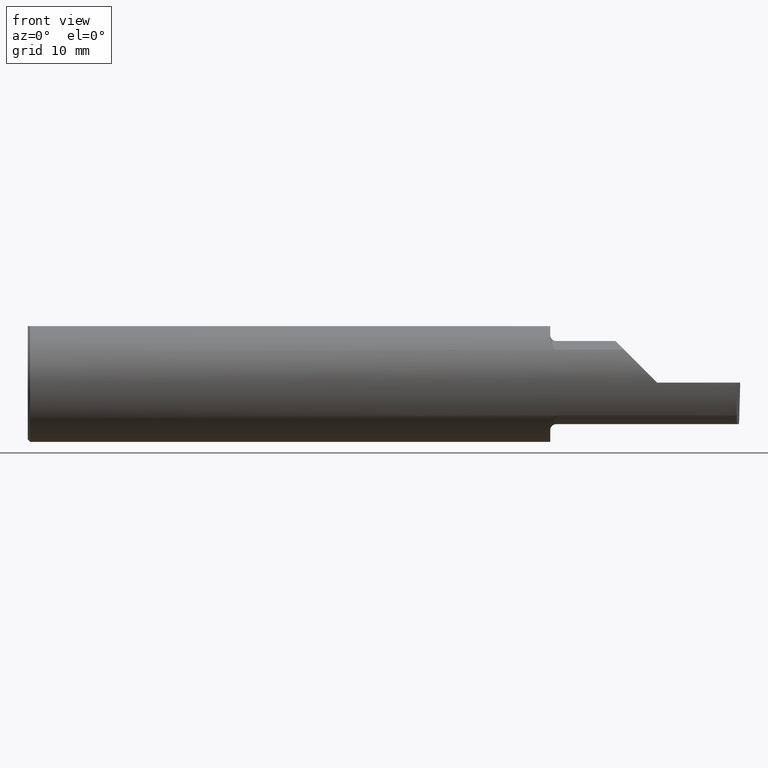
[diagram: clean part render]
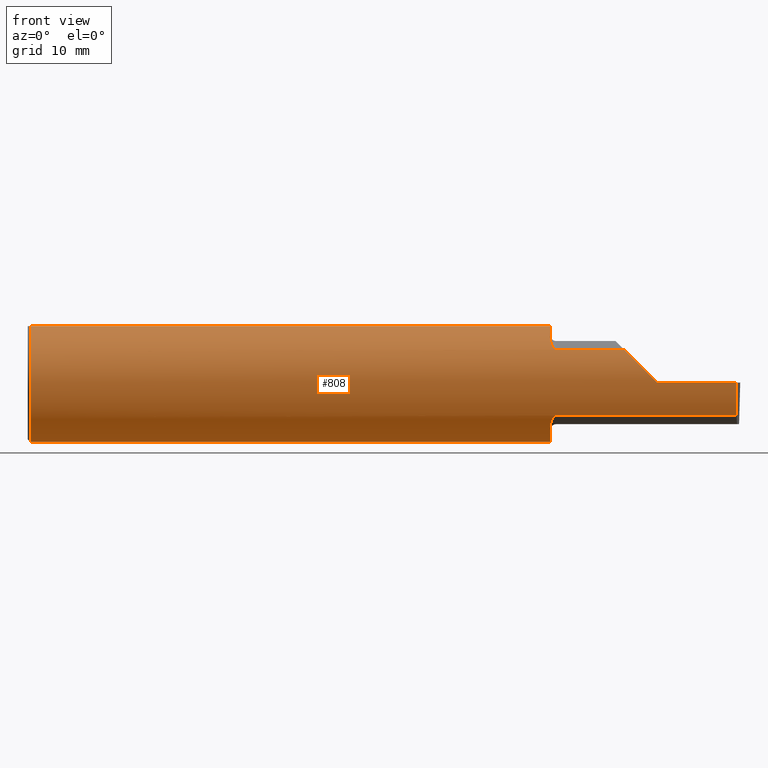
[diagram: same view with one face highlighted and labeled with its STEP entity id]
A machine part, front view. The second image highlights one B-rep face of the part: STEP entity #808.
In plain terms, the highlighted cylindrical surface (partial cylindrical patch) has radius 6.3462 mm, axis along (-1, -0, -0).
Its self-contained STEP definition (entity closure, byte-faithful):
#7 = AXIS2_PLACEMENT_3D ( 'NONE', #334, #591, #534 ) ;
#9 = CARTESIAN_POINT ( 'NONE',  ( 0.009999999999999856226, 0.000000000000000000, 0.000000000000000000 ) ) ;
#11 = CARTESIAN_POINT ( 'NONE',  ( 2.511704467739031887, -0.2080850024789288877, 0.1382955322609669413 ) ) ;
#22 = CARTESIAN_POINT ( 'NONE',  ( 2.214302603425052141, -0.2041009206016212441, -0.1441313430770040926 ) ) ;
#36 = VERTEX_POINT ( 'NONE', #821 ) ;
#44 = VECTOR ( 'NONE', #358, 39.37007874015748143 ) ;
#46 = CARTESIAN_POINT ( 'NONE',  ( 2.200000000000000178, 0.000000000000000000, 0.000000000000000000 ) ) ;
#48 = ORIENTED_EDGE ( 'NONE', *, *, #701, .F. ) ;
#51 = CARTESIAN_POINT ( 'NONE',  ( 2.202968662030529323, -0.1849684355203378150, 0.1680843977756268370 ) ) ;
#75 = CARTESIAN_POINT ( 'NONE',  ( 2.600434159100402987, -0.2498499999999999610, 0.04956584089959713973 ) ) ;
#84 = LINE ( 'NONE', #329, #500 ) ;
#85 = EDGE_CURVE ( 'NONE', #425, #422, #564, .T. ) ;
#91 = CARTESIAN_POINT ( 'NONE',  ( 0.009999999999999856226, 0.07650098038587520299, 0.2378499999999998671 ) ) ;
#95 = CARTESIAN_POINT ( 'NONE',  ( 2.221700027347579098, -0.2077785947292768165, -0.1387580622202825853 ) ) ;
#97 = ORIENTED_EDGE ( 'NONE', *, *, #143, .F. ) ;
#100 = DIRECTION ( 'NONE',  ( 1.000000000000000000, 0.000000000000000000, 0.000000000000000000 ) ) ;
#101 = VERTEX_POINT ( 'NONE', #301 ) ;
#109 = CARTESIAN_POINT ( 'NONE',  ( 2.212616400345756240, -0.2024684335577102146, 0.1464246884265639481 ) ) ;
#113 = CARTESIAN_POINT ( 'NONE',  ( 2.208182335268384033, -0.1972192205116130859, 0.1535061413537210928 ) ) ;
#114 = ORIENTED_EDGE ( 'NONE', *, *, #417, .F. ) ;
#123 = VECTOR ( 'NONE', #321, 39.37007874015748143 ) ;
#142 = CARTESIAN_POINT ( 'NONE',  ( 2.200000000000000178, -0.1616050818046604054, -0.1905487340154980447 ) ) ;
#143 = EDGE_CURVE ( 'NONE', #36, #592, #342, .T. ) ;
#157 = EDGE_CURVE ( 'NONE', #332, #36, #336, .T. ) ;
#160 = VECTOR ( 'NONE', #331, 39.37007874015748143 ) ;
#165 = LINE ( 'NONE', #432, #44 ) ;
#168 = EDGE_CURVE ( 'NONE', #323, #422, #434, .T. ) ;
#185 = LINE ( 'NONE', #569, #160 ) ;
#186 = EDGE_CURVE ( 'NONE', #380, #229, #238, .T. ) ;
#205 = CYLINDRICAL_SURFACE ( 'NONE', #7, 0.2498499999999999888 ) ;
#218 = CARTESIAN_POINT ( 'NONE',  ( 2.200000000000000178, -0.1716188362992555339, -0.1820560320165480472 ) ) ;
#219 = AXIS2_PLACEMENT_3D ( 'NONE', #9, #513, #251 ) ;
#220 = FACE_OUTER_BOUND ( 'NONE', #326, .T. ) ;
#229 = VERTEX_POINT ( 'NONE', #457 ) ;
#235 = DIRECTION ( 'NONE',  ( 0.000000000000000000, 0.000000000000000000, -1.000000000000000000 ) ) ;
#238 =( BOUNDED_CURVE ( )  B_SPLINE_CURVE ( 3, ( #317, #75, #709, #11 ),
 .UNSPECIFIED., .F., .F. ) 
 B_SPLINE_CURVE_WITH_KNOTS ( ( 4, 4 ),
 ( 4.712388980384689674, 5.298966915116348986 ),
 .UNSPECIFIED. ) 
 CURVE ( )  GEOMETRIC_REPRESENTATION_ITEM ( )  RATIONAL_B_SPLINE_CURVE ( ( 1.000000000000000000, 0.9715321379117536349, 0.9715321379117536349, 1.000000000000000000 ) ) 
 REPRESENTATION_ITEM ( '' )  );
#251 = DIRECTION ( 'NONE',  ( 0.000000000000000000, 0.000000000000000000, -1.000000000000000000 ) ) ;
#260 = DIRECTION ( 'NONE',  ( 1.000000000000000000, 0.000000000000000000, 0.000000000000000000 ) ) ;
#265 = CARTESIAN_POINT ( 'NONE',  ( 2.212579853086618975, -0.2024300470081734638, -0.1464774911482685793 ) ) ;
#267 = VERTEX_POINT ( 'NONE', #384 ) ;
#270 = CARTESIAN_POINT ( 'NONE',  ( 2.217611663768900065, -0.2061921161193829566, -0.1411075319999377797 ) ) ;
#274 = ORIENTED_EDGE ( 'NONE', *, *, #767, .F. ) ;
#277 = CARTESIAN_POINT ( 'NONE',  ( 2.208176740666625726, -0.1972027065478072771, -0.1535263573771914747 ) ) ;
#278 = EDGE_CURVE ( 'NONE', #753, #267, #185, .T. ) ;
#279 = CARTESIAN_POINT ( 'NONE',  ( 2.200000000000000178, -0.07650098038587527238, 0.2378499999999998671 ) ) ;
#281 = EDGE_CURVE ( 'NONE', #101, #332, #502, .T. ) ;
#296 = CARTESIAN_POINT ( 'NONE',  ( 2.217647060162628581, -0.2062109266231181848, 0.1410799729252291412 ) ) ;
#301 = CARTESIAN_POINT ( 'NONE',  ( 0.009999999999999856226, -0.07650098038587520299, 0.2378499999999998671 ) ) ;
#304 = DIRECTION ( 'NONE',  ( 0.000000000000000000, 0.000000000000000000, -1.000000000000000000 ) ) ;
#306 = CARTESIAN_POINT ( 'NONE',  ( 2.206159563508734767, -0.1933019864360848439, 0.1584298865564832959 ) ) ;
#317 = CARTESIAN_POINT ( 'NONE',  ( 2.650000000000000355, -0.2498499999999999610, 4.286263797015729199E-17 ) ) ;
#318 = ORIENTED_EDGE ( 'NONE', *, *, #278, .F. ) ;
#321 = DIRECTION ( 'NONE',  ( 1.000000000000000000, 0.000000000000000000, 0.000000000000000000 ) ) ;
#323 = VERTEX_POINT ( 'NONE', #719 ) ;
#326 = EDGE_LOOP ( 'NONE', ( #318, #669, #714, #710, #274, #97, #403, #433, #803, #399, #514, #48, #114 ) ) ;
#329 = CARTESIAN_POINT ( 'NONE',  ( 2.533868310000000346, -0.2080850024789289987, 0.1382955322609668025 ) ) ;
#331 = DIRECTION ( 'NONE',  ( -1.000000000000000000, -0.000000000000000000, -0.000000000000000000 ) ) ;
#332 = VERTEX_POINT ( 'NONE', #279 ) ;
#334 = CARTESIAN_POINT ( 'NONE',  ( 0.000000000000000000, 0.000000000000000000, 0.000000000000000000 ) ) ;
#336 = CIRCLE ( 'NONE', #404, 0.2498499999999999888 ) ;
#342 = B_SPLINE_CURVE_WITH_KNOTS ( 'NONE', 3,
 ( #816, #802, #683, #738, #51, #306, #113, #109, #548, #296, #563, #616, #673, #560 ),
 .UNSPECIFIED., .F., .F.,
 ( 4, 2, 2, 2, 2, 2, 4 ),
 ( 0.0003834465838148164922, 0.0008781406165086602222, 0.001372834649202503898, 0.001867528681896347791, 0.002114875698243273532, 0.002238549206416744208, 0.002362222714590215319 ),
 .UNSPECIFIED. ) ;
#344 = CARTESIAN_POINT ( 'NONE',  ( 2.218863362722770294, -0.2068301641248770362, -0.1401678546132360537 ) ) ;
#358 = DIRECTION ( 'NONE',  ( -1.000000000000000000, -0.000000000000000000, -0.000000000000000000 ) ) ;
#365 = DIRECTION ( 'NONE',  ( -1.000000000000000000, -0.000000000000000000, -0.000000000000000000 ) ) ;
#380 = VERTEX_POINT ( 'NONE', #471 ) ;
#384 = CARTESIAN_POINT ( 'NONE',  ( 2.225000000000000089, -0.2080850024789288599, -0.1382955322609668025 ) ) ;
#390 = CARTESIAN_POINT ( 'NONE',  ( 2.984481223124517690, -0.2080850024789289987, -0.1382955322609668025 ) ) ;
#399 = ORIENTED_EDGE ( 'NONE', *, *, #85, .T. ) ;
#403 = ORIENTED_EDGE ( 'NONE', *, *, #157, .F. ) ;
#404 = AXIS2_PLACEMENT_3D ( 'NONE', #46, #811, #806 ) ;
#415 = CIRCLE ( 'NONE', #219, 0.2498499999999999888 ) ;
#417 = EDGE_CURVE ( 'NONE', #267, #559, #727, .T. ) ;
#422 = VERTEX_POINT ( 'NONE', #91 ) ;
#425 = VERTEX_POINT ( 'NONE', #554 ) ;
#432 = CARTESIAN_POINT ( 'NONE',  ( 4.499279347985562423E-32, -0.2498499999999999610, 3.673940397442054938E-16 ) ) ;
#433 = ORIENTED_EDGE ( 'NONE', *, *, #281, .F. ) ;
#434 = LINE ( 'NONE', #492, #655 ) ;
#436 = CARTESIAN_POINT ( 'NONE',  ( 2.984481223124517690, -0.2080850024789289987, -0.1382955322609668025 ) ) ;
#438 = EDGE_CURVE ( 'NONE', #794, #380, #165, .T. ) ;
#457 = CARTESIAN_POINT ( 'NONE',  ( 2.511704467739031887, -0.2080850024789288877, 0.1382955322609669413 ) ) ;
#459 = DIRECTION ( 'NONE',  ( 1.000000000000000000, 0.000000000000000000, 0.000000000000000000 ) ) ;
#466 = CARTESIAN_POINT ( 'NONE',  ( 2.985438186182187259, -0.2498499999999999888, 0.000000000000000000 ) ) ;
#471 = CARTESIAN_POINT ( 'NONE',  ( 2.650000000000000355, -0.2498499999999999610, 4.286263797015729199E-17 ) ) ;
#483 = AXIS2_PLACEMENT_3D ( 'NONE', #632, #260, #304 ) ;
#492 = CARTESIAN_POINT ( 'NONE',  ( 0.000000000000000000, 0.07650098038587520299, 0.2378499999999998671 ) ) ;
#500 = VECTOR ( 'NONE', #459, 39.37007874015748143 ) ;
#501 = CARTESIAN_POINT ( 'NONE',  ( 2.984244149176539018, -0.2355204011147991605, -0.09701513151466764628 ) ) ;
#502 = LINE ( 'NONE', #506, #123 ) ;
#504 = CARTESIAN_POINT ( 'NONE',  ( 2.985438186182187259, -0.2498499999999999888, 0.000000000000000000 ) ) ;
#506 = CARTESIAN_POINT ( 'NONE',  ( 0.000000000000000000, -0.07650098038587520299, 0.2378499999999998671 ) ) ;
#511 = AXIS2_PLACEMENT_3D ( 'NONE', #668, #100, #235 ) ;
#513 = DIRECTION ( 'NONE',  ( 1.000000000000000000, 0.000000000000000000, 0.000000000000000000 ) ) ;
#514 = ORIENTED_EDGE ( 'NONE', *, *, #168, .F. ) ;
#520 =( BOUNDED_CURVE ( )  B_SPLINE_CURVE ( 3, ( #436, #501, #754, #504 ),
 .UNSPECIFIED., .F., .F. ) 
 B_SPLINE_CURVE_WITH_KNOTS ( ( 4, 4 ),
 ( 6.160376845738948504, 6.746954780470606039 ),
 .UNSPECIFIED. ) 
 CURVE ( )  GEOMETRIC_REPRESENTATION_ITEM ( )  RATIONAL_B_SPLINE_CURVE ( ( 1.000000000000000000, 0.9715321379117538569, 0.9715321379117538569, 1.000000000000000000 ) ) 
 REPRESENTATION_ITEM ( '' )  );
#528 = CARTESIAN_POINT ( 'NONE',  ( 2.201385488563270432, -0.1808287530430326140, -0.1728790649396287904 ) ) ;
#533 = CARTESIAN_POINT ( 'NONE',  ( 2.206147634408388569, -0.1932733126899460752, -0.1584637047788198805 ) ) ;
#534 = DIRECTION ( 'NONE',  ( 0.000000000000000000, 0.000000000000000000, 1.000000000000000000 ) ) ;
#548 = CARTESIAN_POINT ( 'NONE',  ( 2.214343523383979662, -0.2041337200786083050, 0.1440846171672512943 ) ) ;
#554 = CARTESIAN_POINT ( 'NONE',  ( 0.009999999999999856226, 0.000000000000000000, -0.2498499999999999888 ) ) ;
#559 = VERTEX_POINT ( 'NONE', #686 ) ;
#560 = CARTESIAN_POINT ( 'NONE',  ( 2.225000000000000089, -0.2080850024789289987, 0.1382955322609667470 ) ) ;
#563 = CARTESIAN_POINT ( 'NONE',  ( 2.218876997637614590, -0.2068363917296599797, 0.1401586554522229744 ) ) ;
#564 = CIRCLE ( 'NONE', #511, 0.2498499999999999888 ) ;
#569 = CARTESIAN_POINT ( 'NONE',  ( 2.533868310000000346, -0.2080850024789289987, -0.1382955322609668025 ) ) ;
#591 = DIRECTION ( 'NONE',  ( -1.000000000000000000, -0.000000000000000000, -0.000000000000000000 ) ) ;
#592 = VERTEX_POINT ( 'NONE', #615 ) ;
#615 = CARTESIAN_POINT ( 'NONE',  ( 2.225000000000000089, -0.2080850024789289987, 0.1382955322609667470 ) ) ;
#616 = CARTESIAN_POINT ( 'NONE',  ( 2.221718393013768722, -0.2077830475237241181, 0.1387513848711937059 ) ) ;
#632 = CARTESIAN_POINT ( 'NONE',  ( 2.200000000000000178, 0.000000000000000000, 0.000000000000000000 ) ) ;
#651 = EDGE_CURVE ( 'NONE', #753, #794, #520, .T. ) ;
#655 = VECTOR ( 'NONE', #365, 39.37007874015748143 ) ;
#660 = CARTESIAN_POINT ( 'NONE',  ( 2.225000000000000089, -0.2080850024789288599, -0.1382955322609668025 ) ) ;
#668 = CARTESIAN_POINT ( 'NONE',  ( 0.009999999999999856226, 0.000000000000000000, 0.000000000000000000 ) ) ;
#669 = ORIENTED_EDGE ( 'NONE', *, *, #651, .T. ) ;
#673 = CARTESIAN_POINT ( 'NONE',  ( 2.223329956043142097, -0.2080850024798589493, 0.1382955322595675884 ) ) ;
#683 = CARTESIAN_POINT ( 'NONE',  ( 2.200367168219774072, -0.1713400252854603567, 0.1819601557798506408 ) ) ;
#686 = CARTESIAN_POINT ( 'NONE',  ( 2.200000000000000178, -0.1616050818046604054, -0.1905487340154980447 ) ) ;
#693 = EDGE_CURVE ( 'NONE', #101, #425, #415, .T. ) ;
#701 = EDGE_CURVE ( 'NONE', #559, #323, #800, .T. ) ;
#709 = CARTESIAN_POINT ( 'NONE',  ( 2.552984868485331571, -0.2355204011147991605, 0.09701513151466779894 ) ) ;
#710 = ORIENTED_EDGE ( 'NONE', *, *, #186, .T. ) ;
#714 = ORIENTED_EDGE ( 'NONE', *, *, #438, .T. ) ;
#719 = CARTESIAN_POINT ( 'NONE',  ( 2.200000000000000178, 0.07650098038587520299, 0.2378499999999998671 ) ) ;
#727 = B_SPLINE_CURVE_WITH_KNOTS ( 'NONE', 3,
 ( #660, #782, #95, #344, #270, #22, #265, #277, #533, #528, #218, #142 ),
 .UNSPECIFIED., .F., .F.,
 ( 4, 2, 2, 2, 2, 4 ),
 ( 1.964491429042083594E-07, 0.0001260981470478305614, 0.0002519998449527569430, 0.0005038032407626228792, 0.001007410032382354426, 0.002014623615621823158 ),
 .UNSPECIFIED. ) ;
#738 = CARTESIAN_POINT ( 'NONE',  ( 2.201849548162864156, -0.1805300287242673496, 0.1728462070311780341 ) ) ;
#753 = VERTEX_POINT ( 'NONE', #390 ) ;
#754 = CARTESIAN_POINT ( 'NONE',  ( 2.984572483848591862, -0.2498499999999999610, -0.04956584089959709116 ) ) ;
#767 = EDGE_CURVE ( 'NONE', #592, #229, #84, .T. ) ;
#782 = CARTESIAN_POINT ( 'NONE',  ( 2.223318040126429640, -0.2080850024789291097, -0.1382955322609667193 ) ) ;
#794 = VERTEX_POINT ( 'NONE', #466 ) ;
#800 = CIRCLE ( 'NONE', #483, 0.2498499999999999888 ) ;
#802 = CARTESIAN_POINT ( 'NONE',  ( 2.199999999999999734, -0.1665641037263009272, 0.1863429692936361681 ) ) ;
#803 = ORIENTED_EDGE ( 'NONE', *, *, #693, .T. ) ;
#806 = DIRECTION ( 'NONE',  ( 0.000000000000000000, 0.000000000000000000, -1.000000000000000000 ) ) ;
#808 = ADVANCED_FACE ( 'NONE', ( #220 ), #205, .T. ) ;
#811 = DIRECTION ( 'NONE',  ( 1.000000000000000000, 0.000000000000000000, 0.000000000000000000 ) ) ;
#816 = CARTESIAN_POINT ( 'NONE',  ( 2.200000000000000178, -0.1616050818046604054, 0.1905487340154980447 ) ) ;
#821 = CARTESIAN_POINT ( 'NONE',  ( 2.200000000000000178, -0.1616050818046604054, 0.1905487340154980447 ) ) ;